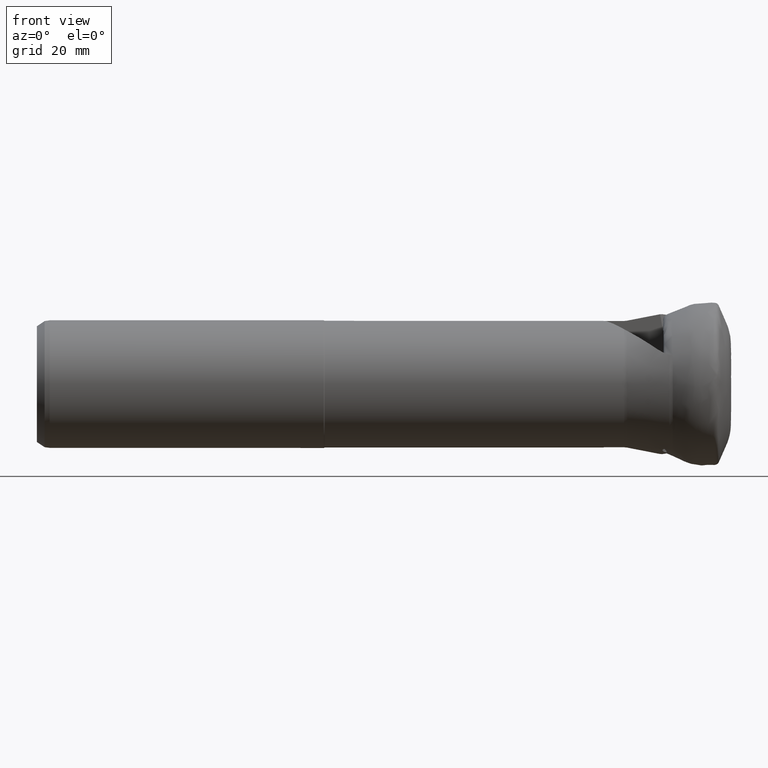
[diagram: clean part render]
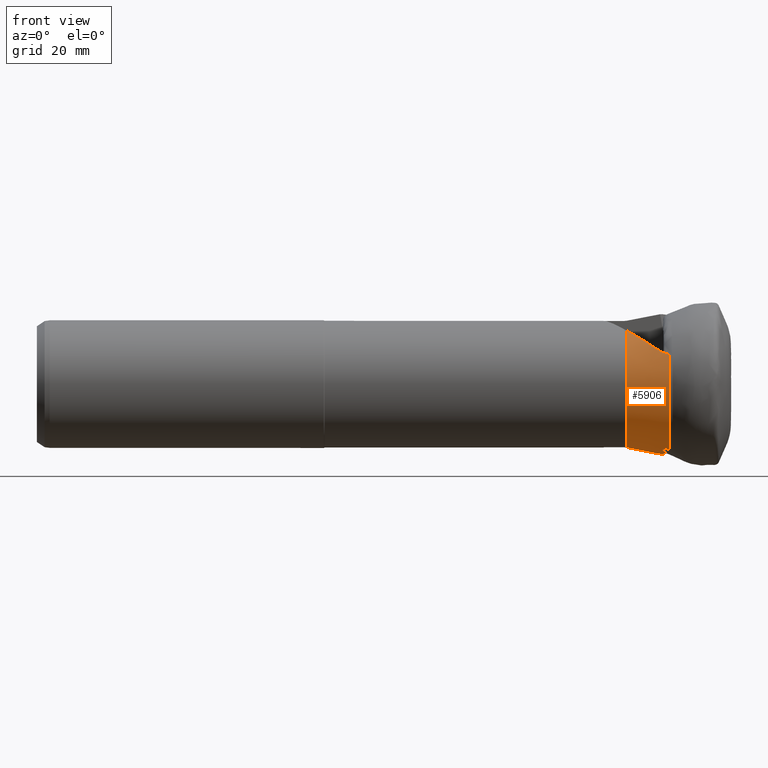
[diagram: same view with one face highlighted and labeled with its STEP entity id]
A machine part, front view. The second image highlights one B-rep face of the part: STEP entity #5906.
In plain terms, the highlighted conical surface has half-angle 10.845 deg.
Its self-contained STEP definition (entity closure, byte-faithful):
#92 = CARTESIAN_POINT ( 'NONE',  ( -19.32556363557012700, -0.8100564290826681700, -12.42721098533912300 ) ) ;
#94 = AXIS2_PLACEMENT_3D ( 'NONE', #1556, #2330, #1616 ) ;
#175 = CARTESIAN_POINT ( 'NONE',  ( -12.89099991687611900, -0.3601079019870963600, -13.68158724386874100 ) ) ;
#300 = CARTESIAN_POINT ( 'NONE',  ( -11.72448605640247800, -3.855970498630952200, -13.36466385005033800 ) ) ;
#327 = CARTESIAN_POINT ( 'NONE',  ( -11.02925917703947800, -5.760464015571924000, -12.80714266826527000 ) ) ;
#335 = ORIENTED_EDGE ( 'NONE', *, *, #4359, .T. ) ;
#736 = ORIENTED_EDGE ( 'NONE', *, *, #2338, .F. ) ;
#740 = CIRCLE ( 'NONE', #3155, 12.45358439536310700 ) ;
#755 = VERTEX_POINT ( 'NONE', #1262 ) ;
#897 = ORIENTED_EDGE ( 'NONE', *, *, #1512, .T. ) ;
#1066 = CARTESIAN_POINT ( 'NONE',  ( -13.40527637212814800, -11.74805511178591500, 6.827262013307659100 ) ) ;
#1171 = ORIENTED_EDGE ( 'NONE', *, *, #2137, .F. ) ;
#1249 = CARTESIAN_POINT ( 'NONE',  ( -11.61871782507151900, -3.128100680945735200, -13.57430880262749200 ) ) ;
#1262 = CARTESIAN_POINT ( 'NONE',  ( -12.84435909463577000, -0.4954418570034891400, -13.68629653410403300 ) ) ;
#1296 = CARTESIAN_POINT ( 'NONE',  ( -11.90382179417870700, -2.532480438140655800, -13.65551308330994800 ) ) ;
#1329 =( BOUNDED_CURVE ( )  B_SPLINE_CURVE ( 3, ( #3490, #3498, #3485, #3476 ),
 .UNSPECIFIED., .F., .T. ) 
 B_SPLINE_CURVE_WITH_KNOTS ( ( 4, 4 ),
 ( 4.245311037378050000, 4.252302622021333400 ),
 .UNSPECIFIED. ) 
 CURVE ( )  GEOMETRIC_REPRESENTATION_ITEM ( )  RATIONAL_B_SPLINE_CURVE ( ( 1.000000000000000000, 0.9999959264828295300, 0.9999959264828295300, 1.000000000000000000 ) ) 
 REPRESENTATION_ITEM ( '' )  );
#1388 = CARTESIAN_POINT ( 'NONE',  ( -12.45613410986680900, -1.332141020560870400, -13.70504729325338300 ) ) ;
#1454 = CARTESIAN_POINT ( 'NONE',  ( -12.18333096745414700, -1.933032816898221600, -13.69915040932523500 ) ) ;
#1459 = B_SPLINE_CURVE_WITH_KNOTS ( 'NONE', 3,
 ( #4241, #4390, #4173, #4151, #4122, #4083, #4063, #4045 ),
 .UNSPECIFIED., .F., .F.,
 ( 4, 2, 2, 4 ),
 ( 0.001854466259670867400, 0.002552766373837413000, 0.003251066488003957900, 0.004647666716337048700 ),
 .UNSPECIFIED. ) ;
#1495 = ORIENTED_EDGE ( 'NONE', *, *, #5140, .F. ) ;
#1512 = EDGE_CURVE ( 'NONE', #5322, #2699, #740, .T. ) ;
#1556 = CARTESIAN_POINT ( 'NONE',  ( -11.02925917703945700, 0.0000000000000000000, 0.0000000000000000000 ) ) ;
#1616 = DIRECTION ( 'NONE',  ( 0.0000000000000000000, 0.0000000000000000000, -1.000000000000000000 ) ) ;
#1644 = ORIENTED_EDGE ( 'NONE', *, *, #5618, .T. ) ;
#2137 = EDGE_CURVE ( 'Kante167', #4008, #2699, #2154, .T. ) ;
#2154 = B_SPLINE_CURVE_WITH_KNOTS ( 'NONE', 3,
 ( #175, #4245, #4741, #92 ),
 .UNSPECIFIED., .F., .F.,
 ( 4, 4 ),
 ( 0.001900804661724748000, 0.008471916973087368800 ),
 .UNSPECIFIED. ) ;
#2212 = CARTESIAN_POINT ( 'NONE',  ( -12.84699154354206600, -0.4598034669791042400, -13.68703556957242600 ) ) ;
#2237 = CARTESIAN_POINT ( 'NONE',  ( -12.84611687358338700, -0.4716832289750527700, -13.68680414462408900 ) ) ;
#2303 = CARTESIAN_POINT ( 'NONE',  ( -12.84435909463577000, -0.4954418570034891400, -13.68629653410403300 ) ) ;
#2309 = CARTESIAN_POINT ( 'NONE',  ( -17.69207303484445500, -8.667618504329919200, 9.592486571145531800 ) ) ;
#2313 = ORIENTED_EDGE ( 'NONE', *, *, #5442, .F. ) ;
#2330 = DIRECTION ( 'NONE',  ( 1.000000000000000000, -0.0000000000000000000, -0.0000000000000000000 ) ) ;
#2338 = EDGE_CURVE ( 'NONE', #5322, #4623, #5929, .T. ) ;
#2380 =( BOUNDED_CURVE ( )  B_SPLINE_CURVE ( 3, ( #2303, #2455, #2237, #2212 ),
 .UNSPECIFIED., .F., .F. ) 
 B_SPLINE_CURVE_WITH_KNOTS ( ( 4, 4 ),
 ( 2.767099512888700800, 2.769610021100674200 ),
 .UNSPECIFIED. ) 
 CURVE ( )  GEOMETRIC_REPRESENTATION_ITEM ( )  RATIONAL_B_SPLINE_CURVE ( ( 1.000000000000000000, 0.9999994747791121100, 0.9999994747791121100, 1.000000000000000000 ) ) 
 REPRESENTATION_ITEM ( '' )  );
#2455 = CARTESIAN_POINT ( 'NONE',  ( -12.84523939015375000, -0.4835626985558612000, -13.68655779933857300 ) ) ;
#2572 = CARTESIAN_POINT ( 'NONE',  ( -19.32556363557012700, -6.787161694477395800, 10.44156120632590800 ) ) ;
#2682 = CARTESIAN_POINT ( 'NONE',  ( -11.02925917703947800, -5.760464015571924000, -12.80714266826527000 ) ) ;
#2697 = CARTESIAN_POINT ( 'NONE',  ( -11.15302565588186000, -5.804153945987363400, -12.76149217255062500 ) ) ;
#2699 = VERTEX_POINT ( 'NONE', #4091 ) ;
#2726 = CARTESIAN_POINT ( 'NONE',  ( -11.28856553954107300, -5.820776543473404500, -12.72523541684814100 ) ) ;
#2742 = CARTESIAN_POINT ( 'NONE',  ( -11.55748605969811600, -5.797240220071256700, -12.67934703913336100 ) ) ;
#2749 = VERTEX_POINT ( 'NONE', #3468 ) ;
#2772 = CARTESIAN_POINT ( 'NONE',  ( -11.69229949827026800, -5.756828675168818200, -12.66952287877470300 ) ) ;
#2780 =( BOUNDED_CURVE ( )  B_SPLINE_CURVE ( 3, ( #1388, #1454, #1296, #1249 ),
 .UNSPECIFIED., .F., .T. ) 
 B_SPLINE_CURVE_WITH_KNOTS ( ( 4, 4 ),
 ( 4.313403113203618100, 4.439529772579417600 ),
 .UNSPECIFIED. ) 
 CURVE ( )  GEOMETRIC_REPRESENTATION_ITEM ( )  RATIONAL_B_SPLINE_CURVE ( ( 1.000000000000000000, 0.9986747781023805900, 0.9986747781023805900, 1.000000000000000000 ) ) 
 REPRESENTATION_ITEM ( '' )  );
#2790 = CARTESIAN_POINT ( 'NONE',  ( -11.93535424601429500, -5.628973297443342200, -12.67591131569408500 ) ) ;
#2796 = CARTESIAN_POINT ( 'NONE',  ( -12.04355687561410100, -5.542338385596832700, -12.69170100726583600 ) ) ;
#2807 = CARTESIAN_POINT ( 'NONE',  ( -12.22115121417330000, -5.337325577265593400, -12.74239126269342700 ) ) ;
#2819 = CARTESIAN_POINT ( 'NONE',  ( -12.28880361217625400, -5.221765458768216700, -12.77642616724598300 ) ) ;
#2829 = CARTESIAN_POINT ( 'NONE',  ( -12.37867466272486700, -4.972276862115078800, -12.85711457685265400 ) ) ;
#2845 = CARTESIAN_POINT ( 'NONE',  ( -12.39912038162440500, -4.843061755167530800, -12.90223314571935900 ) ) ;
#2856 = CARTESIAN_POINT ( 'NONE',  ( -12.38953671779578900, -4.584484678148485600, -12.99830660113640100 ) ) ;
#2862 = CARTESIAN_POINT ( 'NONE',  ( -12.35902675791552400, -4.457576692594702000, -13.04842252063495100 ) ) ;
#2873 = CARTESIAN_POINT ( 'NONE',  ( -12.45613410986680900, -1.332141020560870400, -13.70504729325338300 ) ) ;
#2878 = CARTESIAN_POINT ( 'NONE',  ( -12.24908949290502500, -4.226226841347882500, -13.14730329380991200 ) ) ;
#2886 = CARTESIAN_POINT ( 'NONE',  ( -12.16888238562022400, -4.121284869354191500, -13.19640657834671400 ) ) ;
#2893 = CARTESIAN_POINT ( 'NONE',  ( -12.56890336999146200, -1.221187558967546300, -13.69412576938038000 ) ) ;
#2895 = CARTESIAN_POINT ( 'NONE',  ( -11.97130863296028000, -3.954463211050384800, -13.28684896516154300 ) ) ;
#2952 = CARTESIAN_POINT ( 'NONE',  ( -11.72448605640247800, -3.855970498630952200, -13.36466385005033800 ) ) ;
#2991 = CARTESIAN_POINT ( 'NONE',  ( -12.65968949744193800, -1.092421151764781700, -13.68785800798146800 ) ) ;
#3014 = CARTESIAN_POINT ( 'NONE',  ( -12.79277196986690200, -0.8059744644325010900, -13.68216871123295200 ) ) ;
#3082 = CARTESIAN_POINT ( 'NONE',  ( -12.84435909463577000, -0.4954418570034891400, -13.68629653410403300 ) ) ;
#3111 = VERTEX_POINT ( 'NONE', #300 ) ;
#3124 = CARTESIAN_POINT ( 'NONE',  ( -12.83264201964154000, -0.6535580663402798000, -13.68281899243309300 ) ) ;
#3155 = AXIS2_PLACEMENT_3D ( 'NONE', #5833, #5837, #5824 ) ;
#3175 = VERTEX_POINT ( 'NONE', #4790 ) ;
#3239 = B_SPLINE_CURVE_WITH_KNOTS ( 'NONE', 3,
 ( #3082, #3124, #3014, #2991, #2893, #2873 ),
 .UNSPECIFIED., .F., .F.,
 ( 4, 2, 4 ),
 ( 1.084202172485504400E-019, 0.0004689846191887437700, 0.0009379692383774870000 ),
 .UNSPECIFIED. ) ;
#3301 = CARTESIAN_POINT ( 'NONE',  ( -12.45613410986680900, -1.332141020560870400, -13.70504729325338300 ) ) ;
#3437 = CARTESIAN_POINT ( 'NONE',  ( -11.85249909761524400, -3.891392660712768700, -13.32891859892706600 ) ) ;
#3465 = EDGE_CURVE ( 'NONE', #755, #4842, #3239, .T. ) ;
#3468 = CARTESIAN_POINT ( 'NONE',  ( -11.61871782507151900, -3.128100680945735200, -13.57430880262749200 ) ) ;
#3476 = CARTESIAN_POINT ( 'NONE',  ( -12.84699154354206600, -0.4598034669791042400, -13.68703556957242600 ) ) ;
#3485 = CARTESIAN_POINT ( 'NONE',  ( -12.86168660798711200, -0.4265649338345055600, -13.68533530213832700 ) ) ;
#3490 = CARTESIAN_POINT ( 'NONE',  ( -12.89099991687611900, -0.3601079019870963600, -13.68158724386874100 ) ) ;
#3498 = CARTESIAN_POINT ( 'NONE',  ( -12.87635612552166000, -0.3933329434660874400, -13.68351918617245600 ) ) ;
#3589 = ORIENTED_EDGE ( 'NONE', *, *, #4059, .F. ) ;
#3766 = CONICAL_SURFACE ( 'NONE', #94, 14.04299999999999700, 0.1892875687147444200 ) ;
#3776 = CARTESIAN_POINT ( 'NONE',  ( -13.40527637212814800, -11.74805511178591500, 6.827262013307659100 ) ) ;
#3815 = ORIENTED_EDGE ( 'NONE', *, *, #4222, .F. ) ;
#3829 = ORIENTED_EDGE ( 'NONE', *, *, #5669, .T. ) ;
#3986 = CARTESIAN_POINT ( 'NONE',  ( -11.02925917703956100, -12.79861067441094800, 5.779395626261757200 ) ) ;
#4008 = VERTEX_POINT ( 'NONE', #4739 ) ;
#4045 = CARTESIAN_POINT ( 'NONE',  ( -11.02925917703956100, -12.79861067441094800, 5.779395626261757200 ) ) ;
#4059 = EDGE_CURVE ( 'NONE', #4623, #4075, #1459, .T. ) ;
#4063 = CARTESIAN_POINT ( 'NONE',  ( -11.46847668512810600, -12.65930190450027800, 5.883437519857841000 ) ) ;
#4075 = VERTEX_POINT ( 'NONE', #3986 ) ;
#4083 = CARTESIAN_POINT ( 'NONE',  ( -11.88700554729628500, -12.50397038098808300, 6.026988727507981200 ) ) ;
#4091 = CARTESIAN_POINT ( 'NONE',  ( -19.32556363557012700, -0.8100564290826681700, -12.42721098533912300 ) ) ;
#4122 = CARTESIAN_POINT ( 'NONE',  ( -12.48463755819828900, -12.24165217689133600, 6.293536502592719900 ) ) ;
#4142 = B_SPLINE_CURVE_WITH_KNOTS ( 'NONE', 3,
 ( #2952, #3437, #2895, #2886, #2878, #2862, #2856, #2845, #2829, #2819, #2807, #2796, #2790, #2772, #2742, #2726, #2697, #2682 ),
 .UNSPECIFIED., .F., .F.,
 ( 4, 2, 2, 2, 2, 2, 2, 2, 4 ),
 ( 0.0007220750481062817400, 0.001132804814410612800, 0.001543534580714943800, 0.001954264347019275100, 0.002364994113323606200, 0.002775723879627937200, 0.003186453645932268300, 0.003597183412236599300, 0.004007913178540930400 ),
 .UNSPECIFIED. ) ;
#4151 = CARTESIAN_POINT ( 'NONE',  ( -12.67963675093225700, -12.14880791895752700, 6.391480844682604400 ) ) ;
#4173 = CARTESIAN_POINT ( 'NONE',  ( -13.05372806684217400, -11.95489170372424900, 6.600203895989801100 ) ) ;
#4222 = EDGE_CURVE ( 'NONE', #755, #3175, #2380, .T. ) ;
#4241 = CARTESIAN_POINT ( 'NONE',  ( -13.40527637212814800, -11.74805511178591500, 6.827262013307659100 ) ) ;
#4245 = CARTESIAN_POINT ( 'NONE',  ( -15.03643699928834600, -0.5101314773855435400, -13.26647086254141600 ) ) ;
#4295 = AXIS2_PLACEMENT_3D ( 'NONE', #4635, #4628, #4610 ) ;
#4359 = EDGE_CURVE ( 'NONE', #4842, #2749, #2780, .T. ) ;
#4386 =( BOUNDED_CURVE ( )  B_SPLINE_CURVE ( 3, ( #5473, #5412, #5395, #5387 ),
 .UNSPECIFIED., .F., .F. ) 
 B_SPLINE_CURVE_WITH_KNOTS ( ( 4, 4 ),
 ( 3.652655049215872500, 3.704687454947443600 ),
 .UNSPECIFIED. ) 
 CURVE ( )  GEOMETRIC_REPRESENTATION_ITEM ( )  RATIONAL_B_SPLINE_CURVE ( ( 1.000000000000000000, 0.9997743984546447700, 0.9997743984546447700, 1.000000000000000000 ) ) 
 REPRESENTATION_ITEM ( '' )  );
#4390 = CARTESIAN_POINT ( 'NONE',  ( -13.23311739749768800, -11.85376808269321600, 6.710998224774020700 ) ) ;
#4527 = CARTESIAN_POINT ( 'NONE',  ( -15.69051209583768400, -10.34482267446805200, 8.370545850244914400 ) ) ;
#4610 = DIRECTION ( 'NONE',  ( 0.0000000000000000000, 0.0000000000000000000, -1.000000000000000000 ) ) ;
#4623 = VERTEX_POINT ( 'NONE', #3776 ) ;
#4628 = DIRECTION ( 'NONE',  ( 1.000000000000000000, -0.0000000000000000000, -0.0000000000000000000 ) ) ;
#4635 = CARTESIAN_POINT ( 'NONE',  ( -11.02925917703945700, 0.0000000000000000000, 0.0000000000000000000 ) ) ;
#4739 = CARTESIAN_POINT ( 'NONE',  ( -12.89099991687611900, -0.3601079019870963600, -13.68158724386874100 ) ) ;
#4741 = CARTESIAN_POINT ( 'NONE',  ( -17.18135000374868300, -0.6601184056836051400, -12.84864727982190400 ) ) ;
#4773 = EDGE_LOOP ( 'NONE', ( #736, #897, #1171, #1644, #3815, #5315, #335, #1495, #3829, #2313, #3589 ) ) ;
#4790 = CARTESIAN_POINT ( 'NONE',  ( -12.84699154354206600, -0.4598034669791042400, -13.68703556957242600 ) ) ;
#4842 = VERTEX_POINT ( 'NONE', #3301 ) ;
#4889 = CIRCLE ( 'NONE', #4295, 14.04299999999999700 ) ;
#4948 = VERTEX_POINT ( 'NONE', #327 ) ;
#5140 = EDGE_CURVE ( 'NONE', #3111, #2749, #4386, .T. ) ;
#5230 = CARTESIAN_POINT ( 'NONE',  ( -19.32556363557012700, -6.787161694477395800, 10.44156120632590800 ) ) ;
#5315 = ORIENTED_EDGE ( 'NONE', *, *, #3465, .T. ) ;
#5322 = VERTEX_POINT ( 'NONE', #5230 ) ;
#5387 = CARTESIAN_POINT ( 'NONE',  ( -11.61871782507151900, -3.128100680945735200, -13.57430880262749200 ) ) ;
#5395 = CARTESIAN_POINT ( 'NONE',  ( -11.65551045496850300, -3.372523609063493600, -13.51074980527486200 ) ) ;
#5412 = CARTESIAN_POINT ( 'NONE',  ( -11.69077448769909800, -3.615201630161812400, -13.44085238544986900 ) ) ;
#5442 = EDGE_CURVE ( 'NONE', #4075, #4948, #4889, .T. ) ;
#5473 = CARTESIAN_POINT ( 'NONE',  ( -11.72448605640247800, -3.855970498630952200, -13.36466385005033800 ) ) ;
#5579 = FACE_OUTER_BOUND ( 'NONE', #4773, .T. ) ;
#5618 = EDGE_CURVE ( 'NONE', #4008, #3175, #1329, .T. ) ;
#5669 = EDGE_CURVE ( 'NONE', #3111, #4948, #4142, .T. ) ;
#5824 = DIRECTION ( 'NONE',  ( 0.0000000000000000000, 0.0000000000000000000, -1.000000000000000000 ) ) ;
#5833 = CARTESIAN_POINT ( 'NONE',  ( -19.32556363557012700, 0.0000000000000000000, 0.0000000000000000000 ) ) ;
#5837 = DIRECTION ( 'NONE',  ( 1.000000000000000000, -0.0000000000000000000, -0.0000000000000000000 ) ) ;
#5906 = ADVANCED_FACE ( 'NONE', ( #5579 ), #3766, .T. ) ;
#5929 =( BOUNDED_CURVE ( )  B_SPLINE_CURVE ( 3, ( #2572, #2309, #4527, #1066 ),
 .UNSPECIFIED., .F., .F. ) 
 B_SPLINE_CURVE_WITH_KNOTS ( ( 4, 4 ),
 ( 3.833724541972455500, 4.245131218430408600 ),
 .UNSPECIFIED. ) 
 CURVE ( )  GEOMETRIC_REPRESENTATION_ITEM ( )  RATIONAL_B_SPLINE_CURVE ( ( 1.000000000000000000, 0.9859450438682447700, 0.9859450438682447700, 1.000000000000000000 ) ) 
 REPRESENTATION_ITEM ( '' )  );